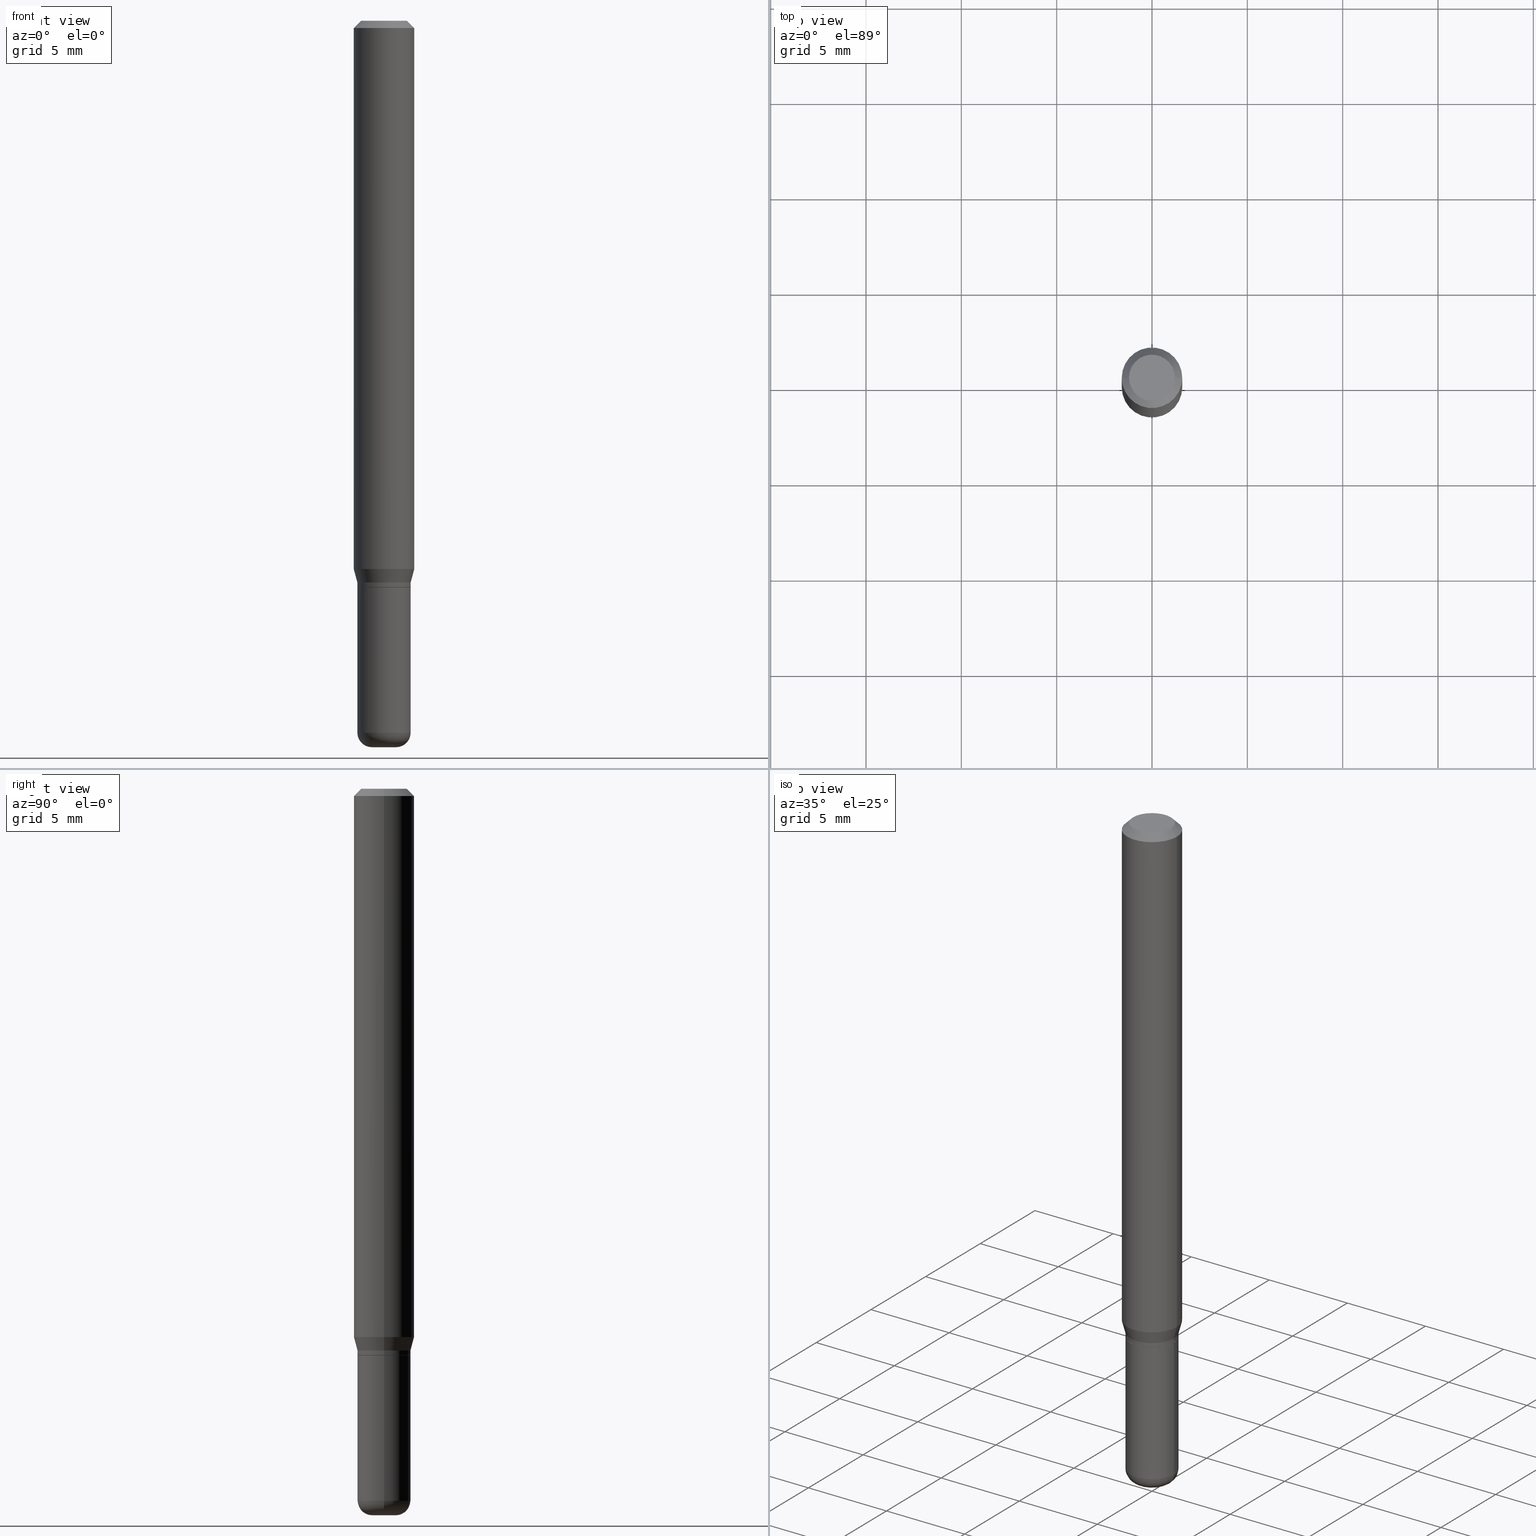
[diagram: canonical four-view strip — front | top / right | iso, engineering-drawing reading convention]
A machine part, canonical four-view strip (front | top / right | iso — engineering-drawing reading convention). The complete STEP part file that produces these views, byte-faithful:
ISO-10303-21;
HEADER;
FILE_DESCRIPTION (( 'STEP AP203' ),
    '1' );
FILE_NAME ('08620.STEP',
    '2024-02-29T20:01:35',
    ( '' ),
    ( '' ),
    'SwSTEP 2.0',
    'SolidWorks 2023',
    '' );
FILE_SCHEMA (( 'CONFIG_CONTROL_DESIGN' ));
ENDSEC;

DATA;
#1 = AXIS2_PLACEMENT_3D ( 'NONE', #308, #146, #231 ) ;
#2 = DIRECTION ( 'NONE',  ( -2.445468806185136597E-29, 3.491481338843145583E-15, 1.000000000000000000 ) ) ;
#3 = EDGE_CURVE ( 'NONE', #486, #10, #489, .T. ) ;
#4 = DIRECTION ( 'NONE',  ( 1.000000000000000000, -6.982962677686267499E-15, 4.876176775795936353E-29 ) ) ;
#5 = COORDINATED_UNIVERSAL_TIME_OFFSET ( 5, 0, .BEHIND. ) ;
#6 = DIRECTION ( 'NONE',  ( -2.445468806185136877E-29, 3.491481338843145188E-15, 1.000000000000000000 ) ) ;
#7 = ORIENTED_EDGE ( 'NONE', *, *, #461, .F. ) ;
#8 = ORIENTED_EDGE ( 'NONE', *, *, #301, .F. ) ;
#9 = EDGE_LOOP ( 'NONE', ( #462, #382 ) ) ;
#10 = VERTEX_POINT ( 'NONE', #172 ) ;
#11 = DIRECTION ( 'NONE',  ( 2.445468806185136597E-29, -3.491481338843145583E-15, -1.000000000000000000 ) ) ;
#12 = ORIENTED_EDGE ( 'NONE', *, *, #415, .F. ) ;
#13 = AXIS2_PLACEMENT_3D ( 'NONE', #410, #37, #154 ) ;
#14 = LINE ( 'NONE', #384, #236 ) ;
#15 = DIRECTION ( 'NONE',  ( -2.445468806185136597E-29, 3.491481338843145583E-15, 1.000000000000000000 ) ) ;
#16 = ADVANCED_FACE ( 'NONE', ( #56 ), #494, .T. ) ;
#17 = EDGE_LOOP ( 'NONE', ( #122, #83, #166, #206 ) ) ;
#18 = DIRECTION ( 'NONE',  ( -0.2588190451025207950, 5.211531920934546309E-15, 0.9659258262890682012 ) ) ;
#19 = DIRECTION ( 'NONE',  ( 2.445468806185136597E-29, -3.491481338843145583E-15, -1.000000000000000000 ) ) ;
#20 = DIRECTION ( 'NONE',  ( 0.7071067811865479058, -7.319954787623257623E-15, -0.7071067811865471286 ) ) ;
#21 = DIRECTION ( 'NONE',  ( -2.445468806185136597E-29, 3.491481338843145583E-15, 1.000000000000000000 ) ) ;
#22 = ADVANCED_FACE ( 'NONE', ( #464 ), #408, .T. ) ;
#23 = EDGE_LOOP ( 'NONE', ( #72, #200, #292, #42 ) ) ;
#24 = DIRECTION ( 'NONE',  ( 1.000000000000000000, -6.982962677686262766E-15, 0.000000000000000000 ) ) ;
#25 = EDGE_CURVE ( 'NONE', #120, #345, #310, .T. ) ;
#26 = DIRECTION ( 'NONE',  ( -1.000000000000000000, 7.105427357600997126E-15, 0.000000000000000000 ) ) ;
#27 = COORDINATED_UNIVERSAL_TIME_OFFSET ( 5, 0, .BEHIND. ) ;
#28 = DIRECTION ( 'NONE',  ( -0.7071067811866199593, 7.493145998870616062E-15, 0.7071067811864750752 ) ) ;
#29 = CARTESIAN_POINT ( 'NONE',  ( 2.861198503236610065E-29, -4.085033166446480067E-15, -1.170000000000000151 ) ) ;
#30 = CIRCLE ( 'NONE', #334, 0.04750000000000000749 ) ;
#31 = SECURITY_CLASSIFICATION_LEVEL ( 'unclassified' ) ;
#32 = LINE ( 'NONE', #229, #258 ) ;
#33 = EDGE_CURVE ( 'NONE', #158, #426, #332, .T. ) ;
#34 = PERSON_AND_ORGANIZATION ( #244, #245 ) ;
#35 =( GEOMETRIC_REPRESENTATION_CONTEXT ( 3 ) GLOBAL_UNCERTAINTY_ASSIGNED_CONTEXT ( ( #387 ) ) GLOBAL_UNIT_ASSIGNED_CONTEXT ( ( #180, #517, #185 ) ) REPRESENTATION_CONTEXT ( 'NONE', 'WORKASPACE' ) );
#36 = AXIS2_PLACEMENT_3D ( 'NONE', #289, #460, #88 ) ;
#37 = DIRECTION ( 'NONE',  ( -2.445468806185136597E-29, 3.491481338843145583E-15, 1.000000000000000000 ) ) ;
#38 = FACE_OUTER_BOUND ( 'NONE', #128, .T. ) ;
#39 = CARTESIAN_POINT ( 'NONE',  ( -0.06250000000000000000, -1.558292130156881494E-15, -0.01499999999999970281 ) ) ;
#40 = APPROVAL ( #70, 'UNSPECIFIED' ) ;
#41 = CARTESIAN_POINT ( 'NONE',  ( 0.06250000000000000000, -4.888073874380378612E-16, -0.01499999999999970281 ) ) ;
#42 = ORIENTED_EDGE ( 'NONE', *, *, #360, .F. ) ;
#43 = EDGE_CURVE ( 'NONE', #498, #68, #14, .T. ) ;
#44 = EDGE_LOOP ( 'NONE', ( #162, #324, #377, #49 ) ) ;
#45 = DIRECTION ( 'NONE',  ( -2.445468806185136597E-29, 3.491481338843145583E-15, 1.000000000000000000 ) ) ;
#46 = ORIENTED_EDGE ( 'NONE', *, *, #43, .T. ) ;
#47 = DIRECTION ( 'NONE',  ( 7.105427357601001859E-15, 1.000000000000000000, -3.491481338843145583E-15 ) ) ;
#48 = ORIENTED_EDGE ( 'NONE', *, *, #273, .T. ) ;
#49 = ORIENTED_EDGE ( 'NONE', *, *, #439, .T. ) ;
#50 = DIRECTION ( 'NONE',  ( 1.000000000000000000, -6.982962677686266711E-15, 4.876176775795935793E-29 ) ) ;
#51 = DIRECTION ( 'NONE',  ( 1.000000000000000000, -6.982962677686266711E-15, 0.000000000000000000 ) ) ;
#52 = CARTESIAN_POINT ( 'NONE',  ( -0.02500000000000001180, -4.900632693878031954E-15, -1.500000000000000444 ) ) ;
#53 = AXIS2_PLACEMENT_3D ( 'NONE', #59, #47, #26 ) ;
#54 = VECTOR ( 'NONE', #20, 39.37007874015748143 ) ;
#55 = CIRCLE ( 'NONE', #13, 0.05500000000000003497 ) ;
#56 = FACE_OUTER_BOUND ( 'NONE', #456, .T. ) ;
#57 = DIRECTION ( 'NONE',  ( 0.7071067811866199593, -2.468850131083015945E-15, 0.7071067811864750752 ) ) ;
#58 = ADVANCED_FACE ( 'NONE', ( #130 ), #141, .T. ) ;
#59 = CARTESIAN_POINT ( 'NONE',  ( -0.02500000000000000139, -4.954841884159399603E-15, -1.470000000000000195 ) ) ;
#60 = EDGE_CURVE ( 'NONE', #10, #345, #294, .T. ) ;
#61 = PLANE ( 'NONE',  #393 ) ;
#62 = AXIS2_PLACEMENT_3D ( 'NONE', #194, #45, #482 ) ;
#63 = EDGE_CURVE ( 'NONE', #247, #498, #510, .T. ) ;
#64 = CALENDAR_DATE ( 2024, 29, 2 ) ;
#65 = CARTESIAN_POINT ( 'NONE',  ( 0.02500000000000001180, -5.411796075206875633E-15, -1.500000000000000444 ) ) ;
#66 = CALENDAR_DATE ( 2024, 29, 2 ) ;
#67 = DIRECTION ( 'NONE',  ( -2.445468806185136877E-29, 3.491481338843145188E-15, 1.000000000000000000 ) ) ;
#68 = VERTEX_POINT ( 'NONE', #175 ) ;
#69 = DIRECTION ( 'NONE',  ( 1.000000000000000000, -6.982962677686265133E-15, 0.000000000000000000 ) ) ;
#70 = APPROVAL_STATUS ( 'not_yet_approved' ) ;
#71 = CIRCLE ( 'NONE', #134, 0.05500000000000006273 ) ;
#72 = ORIENTED_EDGE ( 'NONE', *, *, #443, .T. ) ;
#73 = CARTESIAN_POINT ( 'NONE',  ( -0.05500000000000011130, -4.217956862604895410E-15, -1.470000000000000195 ) ) ;
#74 = AXIS2_PLACEMENT_3D ( 'NONE', #338, #295, #459 ) ;
#75 = EDGE_CURVE ( 'NONE', #336, #120, #504, .T. ) ;
#76 = PLANE ( 'NONE',  #107 ) ;
#77 = PERSON_AND_ORGANIZATION_ROLE ( 'classification_officer' ) ;
#78 = LINE ( 'NONE', #328, #167 ) ;
#79 = ADVANCED_FACE ( 'NONE', ( #296 ), #433, .F. ) ;
#80 = CONICAL_SURFACE ( 'NONE', #224, 0.05450000000000006228, 0.7853981633975507526 ) ;
#81 = ORIENTED_EDGE ( 'NONE', *, *, #63, .F. ) ;
#82 = AXIS2_PLACEMENT_3D ( 'NONE', #284, #15, #385 ) ;
#83 = ORIENTED_EDGE ( 'NONE', *, *, #281, .T. ) ;
#84 = ORIENTED_EDGE ( 'NONE', *, *, #113, .F. ) ;
#85 = FACE_OUTER_BOUND ( 'NONE', #9, .T. ) ;
#86 = ORIENTED_EDGE ( 'NONE', *, *, #75, .T. ) ;
#87 = CYLINDRICAL_SURFACE ( 'NONE', #275, 0.05500000000000006273 ) ;
#88 = DIRECTION ( 'NONE',  ( 1.000000000000000000, -6.982962677686270655E-15, 0.000000000000000000 ) ) ;
#89 = ORIENTED_EDGE ( 'NONE', *, *, #281, .F. ) ;
#90 = ORIENTED_EDGE ( 'NONE', *, *, #63, .T. ) ;
#91 = VERTEX_POINT ( 'NONE', #222 ) ;
#92 = DIRECTION ( 'NONE',  ( -2.445468806185136597E-29, 3.491481338843145583E-15, 1.000000000000000000 ) ) ;
#93 = DIRECTION ( 'NONE',  ( -2.445468806185136597E-29, 3.491481338843145583E-15, 1.000000000000000000 ) ) ;
#94 = DESIGN_CONTEXT ( 'detailed design', #417, 'design' ) ;
#95 = SECURITY_CLASSIFICATION ( '', '', #31 ) ;
#96 = EDGE_CURVE ( 'NONE', #68, #426, #188, .T. ) ;
#97 = CIRCLE ( 'NONE', #483, 0.06250000000000000000 ) ;
#98 = DIRECTION ( 'NONE',  ( -2.445468806185136597E-29, 3.491481338843145583E-15, 1.000000000000000000 ) ) ;
#99 = CARTESIAN_POINT ( 'NONE',  ( 2.861198503236610065E-29, -4.085033166446480067E-15, -1.170000000000000151 ) ) ;
#100 = ORIENTED_EDGE ( 'NONE', *, *, #33, .F. ) ;
#101 = MANIFOLD_SOLID_BREP ( 'Body-Move/Copy2[2]', #317 ) ;
#102 = DIRECTION ( 'NONE',  ( 1.000000000000000000, -6.982962677686274599E-15, 0.000000000000000000 ) ) ;
#103 = DIRECTION ( 'NONE',  ( 1.000000000000000000, -6.982962677686262766E-15, 0.000000000000000000 ) ) ;
#104 = APPROVAL ( #137, 'UNSPECIFIED' ) ;
#105 = APPROVAL_PERSON_ORGANIZATION ( #478, #40, #266 ) ;
#106 = AXIS2_PLACEMENT_3D ( 'NONE', #163, #92, #219 ) ;
#107 = AXIS2_PLACEMENT_3D ( 'NONE', #238, #235, #320 ) ;
#108 = DIRECTION ( 'NONE',  ( -2.438088387897960049E-29, 3.491481338843145188E-15, 1.000000000000000000 ) ) ;
#109 = EDGE_CURVE ( 'NONE', #336, #174, #205, .T. ) ;
#110 = CARTESIAN_POINT ( 'NONE',  ( 0.05500000000000011130, -5.516540515372169792E-15, -1.470000000000000195 ) ) ;
#111 = DIRECTION ( 'NONE',  ( -2.445468806185136597E-29, 3.491481338843145583E-15, 1.000000000000000000 ) ) ;
#112 = ADVANCED_FACE ( 'NONE', ( #259 ), #226, .T. ) ;
#113 = EDGE_CURVE ( 'NONE', #218, #412, #355, .T. ) ;
#114 = APPROVAL_DATE_TIME ( #348, #40 ) ;
#115 = SHAPE_DEFINITION_REPRESENTATION ( #291, #316 ) ;
#116 = LINE ( 'NONE', #274, #361 ) ;
#117 = EDGE_CURVE ( 'NONE', #174, #345, #411, .T. ) ;
#118 = CIRCLE ( 'NONE', #36, 0.06250000000000000000 ) ;
#119 = CLOSED_SHELL ( 'NONE', ( #112, #405, #79, #491, #240, #169 ) ) ;
#120 = VERTEX_POINT ( 'NONE', #41 ) ;
#121 = CYLINDRICAL_SURFACE ( 'NONE', #217, 0.05500000000000004191 ) ;
#122 = ORIENTED_EDGE ( 'NONE', *, *, #150, .T. ) ;
#123 = DIRECTION ( 'NONE',  ( -2.445468806185136597E-29, 3.491481338843145583E-15, 1.000000000000000000 ) ) ;
#124 = CIRCLE ( 'NONE', #511, 0.05500000000000000028 ) ;
#125 = ORIENTED_EDGE ( 'NONE', *, *, #389, .T. ) ;
#126 = DIRECTION ( 'NONE',  ( 1.000000000000000000, -6.982962677686251722E-15, 0.000000000000000000 ) ) ;
#127 = DIRECTION ( 'NONE',  ( 1.000000000000000000, -6.982962677686261977E-15, 0.000000000000000000 ) ) ;
#128 = EDGE_LOOP ( 'NONE', ( #89, #211, #326, #306 ) ) ;
#129 = EDGE_LOOP ( 'NONE', ( #371, #187, #370, #7 ) ) ;
#130 = FACE_OUTER_BOUND ( 'NONE', #249, .T. ) ;
#131 = DIRECTION ( 'NONE',  ( -2.445468806185136597E-29, 3.491481338843145583E-15, 1.000000000000000000 ) ) ;
#132 = CARTESIAN_POINT ( 'NONE',  ( 0.06250000000000000000, -4.811533449433669144E-16, -0.01499999999999970281 ) ) ;
#133 = DIRECTION ( 'NONE',  ( 2.438088387897960049E-29, -3.491481338843145188E-15, -1.000000000000000000 ) ) ;
#134 = AXIS2_PLACEMENT_3D ( 'NONE', #349, #448, #445 ) ;
#135 = DIRECTION ( 'NONE',  ( -1.000000000000000000, 6.982962677686266711E-15, 0.000000000000000000 ) ) ;
#136 = ADVANCED_FACE ( 'NONE', ( #38 ), #121, .T. ) ;
#137 = APPROVAL_STATUS ( 'not_yet_approved' ) ;
#138 = DIRECTION ( 'NONE',  ( 1.000000000000000000, 0.000000000000000000, 0.000000000000000000 ) ) ;
#139 = EDGE_CURVE ( 'NONE', #335, #247, #277, .T. ) ;
#140 = APPROVAL_PERSON_ORGANIZATION ( #34, #152, #449 ) ;
#141 = CONICAL_SURFACE ( 'NONE', #446, 0.05500000000000003497, 0.2617993877991495189 ) ;
#142 = AXIS2_PLACEMENT_3D ( 'NONE', #164, #123, #455 ) ;
#143 = PERSON_AND_ORGANIZATION_ROLE ( 'design_owner' ) ;
#144 = DIRECTION ( 'NONE',  ( -2.445468806185136597E-29, 3.491481338843145583E-15, 1.000000000000000000 ) ) ;
#145 = DIRECTION ( 'NONE',  ( 1.000000000000000000, -6.982962677686265922E-15, 4.876176775795935793E-29 ) ) ;
#146 = DIRECTION ( 'NONE',  ( -2.445468806185136597E-29, 3.491481338843145583E-15, 1.000000000000000000 ) ) ;
#147 = CC_DESIGN_SECURITY_CLASSIFICATION ( #95, ( #309 ) ) ;
#148 = VECTOR ( 'NONE', #18, 39.37007874015748854 ) ;
#149 = CIRCLE ( 'NONE', #453, 0.06250000000000000000 ) ;
#150 = EDGE_CURVE ( 'NONE', #357, #438, #71, .T. ) ;
#151 = DIRECTION ( 'NONE',  ( 1.000000000000000000, -6.982962677686266711E-15, 4.852736867747365086E-29 ) ) ;
#152 = APPROVAL ( #363, 'UNSPECIFIED' ) ;
#153 = CARTESIAN_POINT ( 'NONE',  ( 3.594839145092150820E-29, -5.132477568099424807E-15, -1.470000000000000195 ) ) ;
#154 = DIRECTION ( 'NONE',  ( 1.000000000000000000, -6.982962677686258033E-15, 0.000000000000000000 ) ) ;
#155 = DIRECTION ( 'NONE',  ( -2.445468806185136597E-29, 3.491481338843145583E-15, 1.000000000000000000 ) ) ;
#156 = CC_DESIGN_APPROVAL ( #104, ( #309 ) ) ;
#157 = CARTESIAN_POINT ( 'NONE',  ( 0.02500000000000000139, -5.307051635041580686E-15, -1.470000000000000195 ) ) ;
#158 = VERTEX_POINT ( 'NONE', #73 ) ;
#159 = AXIS2_PLACEMENT_3D ( 'NONE', #513, #144, #69 ) ;
#160 = DIRECTION ( 'NONE',  ( -0.7071067811865479058, 2.468850131082261005E-15, -0.7071067811865471286 ) ) ;
#161 = ORIENTED_EDGE ( 'NONE', *, *, #3, .F. ) ;
#162 = ORIENTED_EDGE ( 'NONE', *, *, #75, .F. ) ;
#163 = CARTESIAN_POINT ( 'NONE',  ( 3.668203209277632395E-31, -5.237222008264614861E-17, -0.01499999999999970281 ) ) ;
#164 = CARTESIAN_POINT ( 'NONE',  ( 0.000000000000000000, 0.000000000000000000, 0.000000000000000000 ) ) ;
#165 = AXIS2_PLACEMENT_3D ( 'NONE', #499, #421, #213 ) ;
#166 = ORIENTED_EDGE ( 'NONE', *, *, #480, .F. ) ;
#167 = VECTOR ( 'NONE', #423, 39.37007874015748143 ) ;
#168 = EDGE_LOOP ( 'NONE', ( #161, #212, #286, #424 ) ) ;
#169 = ADVANCED_FACE ( 'NONE', ( #364 ), #76, .F. ) ;
#170 = CARTESIAN_POINT ( 'NONE',  ( 2.836743815174759641E-29, -4.050118353058050785E-15, -1.160000000000000364 ) ) ;
#171 = CYLINDRICAL_SURFACE ( 'NONE', #74, 0.06250000000000000000 ) ;
#172 = CARTESIAN_POINT ( 'NONE',  ( -0.06250000000000000000, -3.508301250081179708E-15, -1.132009618943234042 ) ) ;
#173 = FACE_OUTER_BOUND ( 'NONE', #457, .T. ) ;
#174 = VERTEX_POINT ( 'NONE', #197 ) ;
#175 = CARTESIAN_POINT ( 'NONE',  ( 0.05500000000000000028, -4.469096113719225052E-15, -1.170000000000000151 ) ) ;
#176 = CARTESIAN_POINT ( 'NONE',  ( 2.859975768833517824E-29, -4.083287425777059353E-15, -1.169500000000000206 ) ) ;
#177 = EDGE_LOOP ( 'NONE', ( #203, #451, #431, #329 ) ) ;
#178 = CIRCLE ( 'NONE', #159, 0.05500000000000011130 ) ;
#179 = CARTESIAN_POINT ( 'NONE',  ( -6.680649051745406845E-45, 9.538196290434862081E-31, 2.731847993664263218E-16 ) ) ;
#180 =( CONVERSION_BASED_UNIT ( 'INCH', #395 ) LENGTH_UNIT ( ) NAMED_UNIT ( #267 ) );
#181 = ORIENTED_EDGE ( 'NONE', *, *, #390, .T. ) ;
#182 = DIRECTION ( 'NONE',  ( 1.000000000000000000, -6.982962677686251722E-15, 0.000000000000000000 ) ) ;
#183 = PERSON_AND_ORGANIZATION ( #244, #245 ) ;
#184 = ORIENTED_EDGE ( 'NONE', *, *, #443, .F. ) ;
#185 =( NAMED_UNIT ( * ) SI_UNIT ( $, .STERADIAN. ) SOLID_ANGLE_UNIT ( ) );
#186 = CARTESIAN_POINT ( 'NONE',  ( 2.768294211427201767E-29, -3.952390459931241535E-15, -1.132009618943234042 ) ) ;
#187 = ORIENTED_EDGE ( 'NONE', *, *, #113, .T. ) ;
#188 = CIRCLE ( 'NONE', #413, 0.05500000000000000028 ) ;
#189 = EDGE_CURVE ( 'NONE', #486, #91, #55, .T. ) ;
#190 = LINE ( 'NONE', #313, #409 ) ;
#191 = PERSON_AND_ORGANIZATION ( #244, #245 ) ;
#192 = LOCAL_TIME ( 15, 1, 35.00000000000000000, #507 ) ;
#193 = DATE_AND_TIME ( #241, #467 ) ;
#194 = CARTESIAN_POINT ( 'NONE',  ( 2.861198503236610065E-29, -4.085033166446480067E-15, -1.170000000000000151 ) ) ;
#195 = EDGE_CURVE ( 'NONE', #174, #336, #30, .T. ) ;
#196 = DIRECTION ( 'NONE',  ( -2.445468806185136597E-29, 3.491481338843145583E-15, 1.000000000000000000 ) ) ;
#197 = CARTESIAN_POINT ( 'NONE',  ( -0.04750000000000000749, 3.578768372314221353E-16, 2.731847993664239060E-16 ) ) ;
#198 = CARTESIAN_POINT ( 'NONE',  ( 3.668203209277706016E-29, -5.237222008264719754E-15, -1.500000000000000444 ) ) ;
#199 = CARTESIAN_POINT ( 'NONE',  ( -0.06250000000000000000, 4.440892098500626162E-16, -3.074334431409316114E-30 ) ) ;
#200 = ORIENTED_EDGE ( 'NONE', *, *, #248, .T. ) ;
#201 = APPROVAL_DATE_TIME ( #481, #152 ) ;
#202 = AXIS2_PLACEMENT_3D ( 'NONE', #505, #488, #372 ) ;
#203 = ORIENTED_EDGE ( 'NONE', *, *, #60, .F. ) ;
#204 = EDGE_CURVE ( 'NONE', #414, #120, #116, .T. ) ;
#205 = CIRCLE ( 'NONE', #323, 0.04750000000000000749 ) ;
#206 = ORIENTED_EDGE ( 'NONE', *, *, #305, .F. ) ;
#207 = CARTESIAN_POINT ( 'NONE',  ( 0.000000000000000000, 0.000000000000000000, 0.000000000000000000 ) ) ;
#208 = ORIENTED_EDGE ( 'NONE', *, *, #60, .T. ) ;
#209 = DIRECTION ( 'NONE',  ( 1.000000000000000000, -6.982962677686261977E-15, 0.000000000000000000 ) ) ;
#210 = ORIENTED_EDGE ( 'NONE', *, *, #389, .F. ) ;
#211 = ORIENTED_EDGE ( 'NONE', *, *, #461, .T. ) ;
#212 = ORIENTED_EDGE ( 'NONE', *, *, #189, .T. ) ;
#213 = DIRECTION ( 'NONE',  ( 1.000000000000000000, -6.982962677686258033E-15, 0.000000000000000000 ) ) ;
#214 = FACE_OUTER_BOUND ( 'NONE', #512, .T. ) ;
#215 = LOCAL_TIME ( 15, 1, 35.00000000000000000, #271 ) ;
#216 = VECTOR ( 'NONE', #6, 39.37007874015748143 ) ;
#217 = AXIS2_PLACEMENT_3D ( 'NONE', #207, #196, #4 ) ;
#218 = VERTEX_POINT ( 'NONE', #228 ) ;
#219 = DIRECTION ( 'NONE',  ( 1.000000000000000000, -6.982962677686266711E-15, 0.000000000000000000 ) ) ;
#220 = DIRECTION ( 'NONE',  ( -2.445468806185136597E-29, 3.491481338843145583E-15, 1.000000000000000000 ) ) ;
#221 = FACE_OUTER_BOUND ( 'NONE', #177, .T. ) ;
#222 = CARTESIAN_POINT ( 'NONE',  ( 0.05500000000000003497, -4.434181300330794981E-15, -1.160000000000000364 ) ) ;
#223 = CARTESIAN_POINT ( 'NONE',  ( 3.668203209277632395E-31, -5.237222008264614861E-17, -0.01499999999999970281 ) ) ;
#224 = AXIS2_PLACEMENT_3D ( 'NONE', #29, #233, #307 ) ;
#225 = AXIS2_PLACEMENT_3D ( 'NONE', #255, #427, #50 ) ;
#226 = TOROIDAL_SURFACE ( 'NONE', #237, 0.02500000000000000139, 0.03000000000000011685 ) ;
#227 = PERSON_AND_ORGANIZATION ( #244, #245 ) ;
#228 = CARTESIAN_POINT ( 'NONE',  ( -0.05450000000000006228, -3.695138148283114316E-15, -1.170000000000000151 ) ) ;
#229 = CARTESIAN_POINT ( 'NONE',  ( -0.05450000000000006228, -3.697787375457225517E-15, -1.170000000000000151 ) ) ;
#230 = APPROVAL_ROLE ( '' ) ;
#231 = DIRECTION ( 'NONE',  ( 1.000000000000000000, -6.982962677686265133E-15, 4.883557194083112340E-29 ) ) ;
#232 = AXIS2_PLACEMENT_3D ( 'NONE', #450, #11, #471 ) ;
#233 = DIRECTION ( 'NONE',  ( -2.445468806185136597E-29, 3.491481338843145583E-15, 1.000000000000000000 ) ) ;
#234 = CC_DESIGN_APPROVAL ( #40, ( #493 ) ) ;
#235 = DIRECTION ( 'NONE',  ( -2.438088387897960049E-29, 3.491481338843145188E-15, 1.000000000000000000 ) ) ;
#236 = VECTOR ( 'NONE', #287, 39.37007874015748143 ) ;
#237 = AXIS2_PLACEMENT_3D ( 'NONE', #153, #368, #416 ) ;
#238 = CARTESIAN_POINT ( 'NONE',  ( 3.582686580359767159E-29, -5.359686688179454114E-15, -1.500000000000000444 ) ) ;
#239 = COORDINATED_UNIVERSAL_TIME_OFFSET ( 5, 0, .BEHIND. ) ;
#240 = ADVANCED_FACE ( 'NONE', ( #352 ), #447, .T. ) ;
#241 = CALENDAR_DATE ( 2024, 29, 2 ) ;
#242 = ADVANCED_FACE ( 'NONE', ( #473 ), #399, .F. ) ;
#243 = EDGE_LOOP ( 'NONE', ( #254, #86, #466, #293 ) ) ;
#244 = PERSON ( 'UNSPECIFIED', 'UNSPECIFIED', 'UNSPECIFIED', ('UNSPECIFIED'), ('UNSPECIFIED'), ('UNSPECIFIED') ) ;
#245 = ORGANIZATION ( 'UNSPECIFIED', 'UNSPECIFIED', '' ) ;
#246 = AXIS2_PLACEMENT_3D ( 'NONE', #515, #108, #437 ) ;
#247 = VERTEX_POINT ( 'NONE', #65 ) ;
#248 = EDGE_CURVE ( 'NONE', #218, #438, #32, .T. ) ;
#249 = EDGE_LOOP ( 'NONE', ( #463, #280, #8, #300 ) ) ;
#250 = CYLINDRICAL_SURFACE ( 'NONE', #142, 0.05500000000000004191 ) ;
#251 = ORIENTED_EDGE ( 'NONE', *, *, #383, .T. ) ;
#252 = CARTESIAN_POINT ( 'NONE',  ( -0.05500000000000006273, 3.907985046680555479E-16, -2.705414299640201165E-30 ) ) ;
#253 = CARTESIAN_POINT ( 'NONE',  ( 3.316907271900976589E-16, 0.04750000000000000749, -2.925296391183627249E-17 ) ) ;
#254 = ORIENTED_EDGE ( 'NONE', *, *, #109, .F. ) ;
#255 = CARTESIAN_POINT ( 'NONE',  ( 0.000000000000000000, 0.000000000000000000, 0.000000000000000000 ) ) ;
#256 = CARTESIAN_POINT ( 'NONE',  ( -0.05500000000000003497, -3.583810549235586733E-15, -1.160000000000000364 ) ) ;
#257 = DIRECTION ( 'NONE',  ( -2.445468806185136597E-29, 3.491481338843145583E-15, 1.000000000000000000 ) ) ;
#258 = VECTOR ( 'NONE', #28, 39.37007874015748143 ) ;
#259 = FACE_OUTER_BOUND ( 'NONE', #501, .T. ) ;
#260 = CARTESIAN_POINT ( 'NONE',  ( 0.000000000000000000, 0.000000000000000000, 0.000000000000000000 ) ) ;
#261 = EDGE_CURVE ( 'NONE', #10, #414, #97, .T. ) ;
#262 = CARTESIAN_POINT ( 'NONE',  ( 3.668203209277706016E-29, -5.237222008264719754E-15, -1.500000000000000444 ) ) ;
#263 = APPROVAL_PERSON_ORGANIZATION ( #227, #104, #230 ) ;
#264 = ORIENTED_EDGE ( 'NONE', *, *, #415, .T. ) ;
#265 = CIRCLE ( 'NONE', #380, 0.05500000000000006273 ) ;
#266 = APPROVAL_ROLE ( '' ) ;
#267 = DIMENSIONAL_EXPONENTS ( 1.000000000000000000, 0.000000000000000000, 0.000000000000000000, 0.000000000000000000, 0.000000000000000000, 0.000000000000000000, 0.000000000000000000 ) ;
#268 = PERSON_AND_ORGANIZATION ( #244, #245 ) ;
#269 = EDGE_LOOP ( 'NONE', ( #340, #374 ) ) ;
#270 = MANIFOLD_SOLID_BREP ( 'Body-Move/Copy2[1]', #119 ) ;
#271 = COORDINATED_UNIVERSAL_TIME_OFFSET ( 5, 0, .BEHIND. ) ;
#272 = DATE_AND_TIME ( #66, #192 ) ;
#273 = EDGE_CURVE ( 'NONE', #498, #158, #178, .T. ) ;
#274 = CARTESIAN_POINT ( 'NONE',  ( 0.06250000000000000000, -4.364351673553916694E-16, 3.047610484872459871E-30 ) ) ;
#275 = AXIS2_PLACEMENT_3D ( 'NONE', #260, #288, #434 ) ;
#276 = AXIS2_PLACEMENT_3D ( 'NONE', #157, #502, #102 ) ;
#277 = CIRCLE ( 'NONE', #298, 0.02500000000000001180 ) ;
#278 = CC_DESIGN_PERSON_AND_ORGANIZATION_ASSIGNMENT ( #477, #402, ( #309 ) ) ;
#279 = ORIENTED_EDGE ( 'NONE', *, *, #96, .F. ) ;
#280 = ORIENTED_EDGE ( 'NONE', *, *, #3, .T. ) ;
#281 = EDGE_CURVE ( 'NONE', #438, #486, #190, .T. ) ;
#282 = AXIS2_PLACEMENT_3D ( 'NONE', #398, #315, #138 ) ;
#283 = ORIENTED_EDGE ( 'NONE', *, *, #96, .T. ) ;
#284 = CARTESIAN_POINT ( 'NONE',  ( 3.594839145092150820E-29, -5.132477568099424807E-15, -1.470000000000000195 ) ) ;
#285 = CIRCLE ( 'NONE', #436, 0.05450000000000006228 ) ;
#286 = ORIENTED_EDGE ( 'NONE', *, *, #444, .T. ) ;
#287 = DIRECTION ( 'NONE',  ( -2.445468806185136877E-29, 3.491481338843145188E-15, 1.000000000000000000 ) ) ;
#288 = DIRECTION ( 'NONE',  ( -2.445468806185136597E-29, 3.491481338843145583E-15, 1.000000000000000000 ) ) ;
#289 = CARTESIAN_POINT ( 'NONE',  ( 2.768294211427201767E-29, -3.952390459931241535E-15, -1.132009618943234042 ) ) ;
#290 = ADVANCED_FACE ( 'NONE', ( #373 ), #470, .T. ) ;
#291 = PRODUCT_DEFINITION_SHAPE ( 'NONE', 'NONE',  #493 ) ;
#292 = ORIENTED_EDGE ( 'NONE', *, *, #150, .F. ) ;
#293 = ORIENTED_EDGE ( 'NONE', *, *, #117, .F. ) ;
#294 = LINE ( 'NONE', #199, #216 ) ;
#295 = DIRECTION ( 'NONE',  ( -2.445468806185136597E-29, 3.491481338843145583E-15, 1.000000000000000000 ) ) ;
#296 = FACE_OUTER_BOUND ( 'NONE', #418, .T. ) ;
#297 = CARTESIAN_POINT ( 'NONE',  ( -0.05500000000000006273, -3.692488921109003903E-15, -1.169500000000000206 ) ) ;
#298 = AXIS2_PLACEMENT_3D ( 'NONE', #198, #155, #182 ) ;
#299 = CC_DESIGN_DATE_AND_TIME_ASSIGNMENT ( #193, #321, ( #95 ) ) ;
#300 = ORIENTED_EDGE ( 'NONE', *, *, #444, .F. ) ;
#301 = EDGE_CURVE ( 'NONE', #414, #10, #118, .T. ) ;
#302 = DIRECTION ( 'NONE',  ( 2.438088387897960049E-29, -3.491481338843145188E-15, -1.000000000000000000 ) ) ;
#303 = CARTESIAN_POINT ( 'NONE',  ( -0.05500000000000000028, -4.217956862604896988E-15, -1.170000000000000151 ) ) ;
#304 = APPROVAL_DATE_TIME ( #314, #104 ) ;
#305 = EDGE_CURVE ( 'NONE', #357, #91, #78, .T. ) ;
#306 = ORIENTED_EDGE ( 'NONE', *, *, #189, .F. ) ;
#307 = DIRECTION ( 'NONE',  ( 1.000000000000000000, -6.982962677686261977E-15, 0.000000000000000000 ) ) ;
#308 = CARTESIAN_POINT ( 'NONE',  ( 3.594839145092150820E-29, -5.132477568099424807E-15, -1.470000000000000195 ) ) ;
#309 = PRODUCT_DEFINITION_FORMATION_WITH_SPECIFIED_SOURCE ( 'ANY', '', #339, .NOT_KNOWN. ) ;
#310 = CIRCLE ( 'NONE', #106, 0.06250000000000000000 ) ;
#311 = AXIS2_PLACEMENT_3D ( 'NONE', #495, #19, #135 ) ;
#312 = APPLICATION_PROTOCOL_DEFINITION ( 'international standard', 'config_control_design', 1994, #417 ) ;
#313 = CARTESIAN_POINT ( 'NONE',  ( -0.05500000000000004191, 3.907985046680554000E-16, -2.705414299640200464E-30 ) ) ;
#314 = DATE_AND_TIME ( #514, #376 ) ;
#315 = DIRECTION ( 'NONE',  ( 0.000000000000000000, 0.000000000000000000, 1.000000000000000000 ) ) ;
#316 = ADVANCED_BREP_SHAPE_REPRESENTATION ( '08620', ( #270, #101, #282 ), #35 ) ;
#317 = CLOSED_SHELL ( 'NONE', ( #397, #290, #359, #16, #58, #22, #396, #346, #432, #242, #509, #136 ) ) ;
#318 = VECTOR ( 'NONE', #57, 39.37007874015748143 ) ;
#319 = CALENDAR_DATE ( 2024, 29, 2 ) ;
#320 = DIRECTION ( 'NONE',  ( 1.000000000000000000, -6.982962677686265922E-15, 4.876176775795935793E-29 ) ) ;
#321 = DATE_TIME_ROLE ( 'classification_date' ) ;
#322 = AXIS2_PLACEMENT_3D ( 'NONE', #472, #356, #145 ) ;
#323 = AXIS2_PLACEMENT_3D ( 'NONE', #179, #98, #425 ) ;
#324 = ORIENTED_EDGE ( 'NONE', *, *, #195, .F. ) ;
#325 = PRODUCT_RELATED_PRODUCT_CATEGORY ( 'detail', '', ( #339 ) ) ;
#326 = ORIENTED_EDGE ( 'NONE', *, *, #305, .T. ) ;
#327 = CARTESIAN_POINT ( 'NONE',  ( 0.05500000000000003497, -4.434181300330794981E-15, -1.160000000000000364 ) ) ;
#328 = CARTESIAN_POINT ( 'NONE',  ( 0.05500000000000004191, -3.840629472727449846E-16, 2.681897226687766928E-30 ) ) ;
#329 = ORIENTED_EDGE ( 'NONE', *, *, #439, .F. ) ;
#330 = EDGE_LOOP ( 'NONE', ( #12, #454, #90, #367 ) ) ;
#331 = CIRCLE ( 'NONE', #202, 0.05500000000000003497 ) ;
#332 = LINE ( 'NONE', #252, #474 ) ;
#333 = DIRECTION ( 'NONE',  ( -2.445468806185136597E-29, 3.491481338843145583E-15, 1.000000000000000000 ) ) ;
#334 = AXIS2_PLACEMENT_3D ( 'NONE', #362, #2, #151 ) ;
#335 = VERTEX_POINT ( 'NONE', #52 ) ;
#336 = VERTEX_POINT ( 'NONE', #381 ) ;
#337 = DIRECTION ( 'NONE',  ( 1.000000000000000000, -6.982962677686258033E-15, 0.000000000000000000 ) ) ;
#338 = CARTESIAN_POINT ( 'NONE',  ( 0.000000000000000000, 0.000000000000000000, 0.000000000000000000 ) ) ;
#339 = PRODUCT ( '08620', '08620', '', ( #508 ) ) ;
#340 = ORIENTED_EDGE ( 'NONE', *, *, #390, .F. ) ;
#341 = CARTESIAN_POINT ( 'NONE',  ( 0.05450000000000006228, -4.465604632380382045E-15, -1.170000000000000151 ) ) ;
#342 = CARTESIAN_POINT ( 'NONE',  ( 3.840629472727732850E-16, 0.05499999999999591327, -1.170000000000000151 ) ) ;
#343 = DIRECTION ( 'NONE',  ( 1.000000000000000000, -6.982962677686262766E-15, 0.000000000000000000 ) ) ;
#344 = CONICAL_SURFACE ( 'NONE', #232, 0.06250000000000000000, 0.7853981633974488341 ) ;
#345 = VERTEX_POINT ( 'NONE', #39 ) ;
#346 = ADVANCED_FACE ( 'NONE', ( #365 ), #344, .T. ) ;
#347 = DIRECTION ( 'NONE',  ( -1.000000000000000000, 6.982962677686265922E-15, -4.876176775795935793E-29 ) ) ;
#348 = DATE_AND_TIME ( #64, #215 ) ;
#349 = CARTESIAN_POINT ( 'NONE',  ( 2.859975768833517824E-29, -4.083287425777059353E-15, -1.169500000000000206 ) ) ;
#350 = PERSON_AND_ORGANIZATION_ROLE ( 'creator' ) ;
#351 = PERSON_AND_ORGANIZATION ( #244, #245 ) ;
#352 = FACE_OUTER_BOUND ( 'NONE', #330, .T. ) ;
#353 = VECTOR ( 'NONE', #160, 39.37007874015748143 ) ;
#354 = AXIS2_PLACEMENT_3D ( 'NONE', #342, #302, #347 ) ;
#355 = CIRCLE ( 'NONE', #62, 0.05450000000000006228 ) ;
#356 = DIRECTION ( 'NONE',  ( -2.445468806185136597E-29, 3.491481338843145583E-15, 1.000000000000000000 ) ) ;
#357 = VERTEX_POINT ( 'NONE', #392 ) ;
#358 = FACE_OUTER_BOUND ( 'NONE', #129, .T. ) ;
#359 = ADVANCED_FACE ( 'NONE', ( #419 ), #429, .T. ) ;
#360 = EDGE_CURVE ( 'NONE', #412, #357, #430, .T. ) ;
#361 = VECTOR ( 'NONE', #67, 39.37007874015748143 ) ;
#362 = CARTESIAN_POINT ( 'NONE',  ( -6.680649051745406845E-45, 9.538196290434862081E-31, 2.731847993664263218E-16 ) ) ;
#363 = APPROVAL_STATUS ( 'not_yet_approved' ) ;
#364 = FACE_OUTER_BOUND ( 'NONE', #269, .T. ) ;
#365 = FACE_OUTER_BOUND ( 'NONE', #44, .T. ) ;
#366 = CIRCLE ( 'NONE', #441, 0.02500000000000001180 ) ;
#367 = ORIENTED_EDGE ( 'NONE', *, *, #383, .F. ) ;
#368 = DIRECTION ( 'NONE',  ( -2.445468806185136597E-29, 3.491481338843145583E-15, 1.000000000000000000 ) ) ;
#369 = ORIENTED_EDGE ( 'NONE', *, *, #273, .F. ) ;
#370 = ORIENTED_EDGE ( 'NONE', *, *, #360, .T. ) ;
#371 = ORIENTED_EDGE ( 'NONE', *, *, #248, .F. ) ;
#372 = DIRECTION ( 'NONE',  ( 1.000000000000000000, -6.982962677686258033E-15, 0.000000000000000000 ) ) ;
#373 = FACE_OUTER_BOUND ( 'NONE', #23, .T. ) ;
#374 = ORIENTED_EDGE ( 'NONE', *, *, #139, .F. ) ;
#375 = ORIENTED_EDGE ( 'NONE', *, *, #25, .F. ) ;
#376 = LOCAL_TIME ( 15, 1, 35.00000000000000000, #27 ) ;
#377 = ORIENTED_EDGE ( 'NONE', *, *, #117, .T. ) ;
#378 = DIRECTION ( 'NONE',  ( -2.445468806185136877E-29, 3.491481338843145188E-15, 1.000000000000000000 ) ) ;
#379 = LINE ( 'NONE', #327, #492 ) ;
#380 = AXIS2_PLACEMENT_3D ( 'NONE', #176, #93, #343 ) ;
#381 = CARTESIAN_POINT ( 'NONE',  ( 0.04750000000000000749, -4.035134999187568762E-16, 2.731847993664288856E-16 ) ) ;
#382 = ORIENTED_EDGE ( 'NONE', *, *, #109, .T. ) ;
#383 = EDGE_CURVE ( 'NONE', #158, #498, #479, .T. ) ;
#384 = CARTESIAN_POINT ( 'NONE',  ( 0.05500000000000006273, -3.840629472727450832E-16, 2.681897226687767629E-30 ) ) ;
#385 = DIRECTION ( 'NONE',  ( 1.000000000000000000, -6.982962677686265133E-15, 0.000000000000000000 ) ) ;
#386 = FACE_OUTER_BOUND ( 'NONE', #17, .T. ) ;
#387 = UNCERTAINTY_MEASURE_WITH_UNIT (LENGTH_MEASURE( 1.000000000000000082E-05 ), #180, 'distance_accuracy_value', 'NONE');
#388 = ORIENTED_EDGE ( 'NONE', *, *, #204, .F. ) ;
#389 = EDGE_CURVE ( 'NONE', #426, #68, #124, .T. ) ;
#390 = EDGE_CURVE ( 'NONE', #247, #335, #366, .T. ) ;
#391 = CARTESIAN_POINT ( 'NONE',  ( 2.861198503236610065E-29, -4.085033166446480067E-15, -1.170000000000000151 ) ) ;
#392 = CARTESIAN_POINT ( 'NONE',  ( 0.05500000000000006273, -4.467350373049804337E-15, -1.169500000000000206 ) ) ;
#393 = AXIS2_PLACEMENT_3D ( 'NONE', #253, #133, #422 ) ;
#394 = APPLICATION_CONTEXT ( 'configuration controlled 3d designs of mechanical parts and assemblies' ) ;
#395 = LENGTH_MEASURE_WITH_UNIT ( LENGTH_MEASURE( 0.02539999999999999897 ), #404 );
#396 = ADVANCED_FACE ( 'NONE', ( #221 ), #171, .T. ) ;
#397 = ADVANCED_FACE ( 'NONE', ( #386 ), #250, .T. ) ;
#398 = CARTESIAN_POINT ( 'NONE',  ( 0.000000000000000000, 0.000000000000000000, 0.000000000000000000 ) ) ;
#399 = PLANE ( 'NONE',  #246 ) ;
#400 = AXIS2_PLACEMENT_3D ( 'NONE', #496, #257, #127 ) ;
#401 = DIRECTION ( 'NONE',  ( 1.000000000000000000, -6.982962677686270655E-15, 0.000000000000000000 ) ) ;
#402 = PERSON_AND_ORGANIZATION_ROLE ( 'creator' ) ;
#403 = CC_DESIGN_PERSON_AND_ORGANIZATION_ASSIGNMENT ( #183, #440, ( #309 ) ) ;
#404 =( LENGTH_UNIT ( ) NAMED_UNIT ( * ) SI_UNIT ( $, .METRE. ) );
#405 = ADVANCED_FACE ( 'NONE', ( #173 ), #87, .T. ) ;
#406 = LOCAL_TIME ( 15, 1, 35.00000000000000000, #239 ) ;
#407 = CC_DESIGN_PERSON_AND_ORGANIZATION_ASSIGNMENT ( #351, #143, ( #339 ) ) ;
#408 = CONICAL_SURFACE ( 'NONE', #165, 0.05500000000000003497, 0.2617993877991495189 ) ;
#409 = VECTOR ( 'NONE', #476, 39.37007874015748143 ) ;
#410 = CARTESIAN_POINT ( 'NONE',  ( 2.836743815174759641E-29, -4.050118353058050785E-15, -1.160000000000000364 ) ) ;
#411 = LINE ( 'NONE', #484, #353 ) ;
#412 = VERTEX_POINT ( 'NONE', #341 ) ;
#413 = AXIS2_PLACEMENT_3D ( 'NONE', #391, #468, #24 ) ;
#414 = VERTEX_POINT ( 'NONE', #503 ) ;
#415 = EDGE_CURVE ( 'NONE', #335, #158, #506, .T. ) ;
#416 = DIRECTION ( 'NONE',  ( 1.000000000000000000, -6.982962677686265133E-15, 4.883557194083112340E-29 ) ) ;
#417 = APPLICATION_CONTEXT ( 'configuration controlled 3d designs of mechanical parts and assemblies' ) ;
#418 = EDGE_LOOP ( 'NONE', ( #283, #125 ) ) ;
#419 = FACE_OUTER_BOUND ( 'NONE', #243, .T. ) ;
#420 = CARTESIAN_POINT ( 'NONE',  ( -0.05500000000000003497, -3.659319848389995336E-15, -1.160000000000000364 ) ) ;
#421 = DIRECTION ( 'NONE',  ( -2.445468806185136597E-29, 3.491481338843145583E-15, 1.000000000000000000 ) ) ;
#422 = DIRECTION ( 'NONE',  ( -1.000000000000000000, 6.982962677686265922E-15, -4.876176775795935793E-29 ) ) ;
#423 = DIRECTION ( 'NONE',  ( -2.445468806185136877E-29, 3.491481338843145188E-15, 1.000000000000000000 ) ) ;
#424 = ORIENTED_EDGE ( 'NONE', *, *, #261, .F. ) ;
#425 = DIRECTION ( 'NONE',  ( 1.000000000000000000, -6.982962677686266711E-15, 4.852736867747365086E-29 ) ) ;
#426 = VERTEX_POINT ( 'NONE', #303 ) ;
#427 = DIRECTION ( 'NONE',  ( -2.445468806185136597E-29, 3.491481338843145583E-15, 1.000000000000000000 ) ) ;
#428 = CYLINDRICAL_SURFACE ( 'NONE', #322, 0.05500000000000006273 ) ;
#429 = CONICAL_SURFACE ( 'NONE', #311, 0.06250000000000000000, 0.7853981633974488341 ) ;
#430 = LINE ( 'NONE', #469, #318 ) ;
#431 = ORIENTED_EDGE ( 'NONE', *, *, #204, .T. ) ;
#432 = ADVANCED_FACE ( 'NONE', ( #85 ), #61, .F. ) ;
#433 = PLANE ( 'NONE',  #354 ) ;
#434 = DIRECTION ( 'NONE',  ( 1.000000000000000000, -6.982962677686265922E-15, 4.876176775795935793E-29 ) ) ;
#435 = CC_DESIGN_PERSON_AND_ORGANIZATION_ASSIGNMENT ( #191, #77, ( #95 ) ) ;
#436 = AXIS2_PLACEMENT_3D ( 'NONE', #465, #131, #209 ) ;
#437 = DIRECTION ( 'NONE',  ( 1.000000000000000000, -6.982962677686265922E-15, 4.876176775795935793E-29 ) ) ;
#438 = VERTEX_POINT ( 'NONE', #297 ) ;
#439 = EDGE_CURVE ( 'NONE', #345, #120, #149, .T. ) ;
#440 = PERSON_AND_ORGANIZATION_ROLE ( 'design_supplier' ) ;
#441 = AXIS2_PLACEMENT_3D ( 'NONE', #262, #220, #126 ) ;
#442 = DATE_TIME_ROLE ( 'creation_date' ) ;
#443 = EDGE_CURVE ( 'NONE', #412, #218, #285, .T. ) ;
#444 = EDGE_CURVE ( 'NONE', #91, #414, #379, .T. ) ;
#445 = DIRECTION ( 'NONE',  ( 1.000000000000000000, -6.982962677686262766E-15, 0.000000000000000000 ) ) ;
#446 = AXIS2_PLACEMENT_3D ( 'NONE', #170, #458, #337 ) ;
#447 = TOROIDAL_SURFACE ( 'NONE', #1, 0.02500000000000000139, 0.03000000000000011685 ) ;
#448 = DIRECTION ( 'NONE',  ( -2.445468806185136597E-29, 3.491481338843145583E-15, 1.000000000000000000 ) ) ;
#449 = APPROVAL_ROLE ( '' ) ;
#450 = CARTESIAN_POINT ( 'NONE',  ( 3.668203209277632395E-31, -5.237222008264614861E-17, -0.01499999999999970281 ) ) ;
#451 = ORIENTED_EDGE ( 'NONE', *, *, #261, .T. ) ;
#452 = ORIENTED_EDGE ( 'NONE', *, *, #43, .F. ) ;
#453 = AXIS2_PLACEMENT_3D ( 'NONE', #223, #21, #51 ) ;
#454 = ORIENTED_EDGE ( 'NONE', *, *, #139, .T. ) ;
#455 = DIRECTION ( 'NONE',  ( 1.000000000000000000, -6.982962677686267499E-15, 4.876176775795936353E-29 ) ) ;
#456 = EDGE_LOOP ( 'NONE', ( #487, #208, #375, #388 ) ) ;
#457 = EDGE_LOOP ( 'NONE', ( #48, #516, #279, #452 ) ) ;
#458 = DIRECTION ( 'NONE',  ( -2.445468806185136597E-29, 3.491481338843145583E-15, 1.000000000000000000 ) ) ;
#459 = DIRECTION ( 'NONE',  ( 1.000000000000000000, -6.982962677686266711E-15, 4.876176775795935793E-29 ) ) ;
#460 = DIRECTION ( 'NONE',  ( -2.445468806185136597E-29, 3.491481338843145583E-15, 1.000000000000000000 ) ) ;
#461 = EDGE_CURVE ( 'NONE', #438, #357, #265, .T. ) ;
#462 = ORIENTED_EDGE ( 'NONE', *, *, #195, .T. ) ;
#463 = ORIENTED_EDGE ( 'NONE', *, *, #480, .T. ) ;
#464 = FACE_OUTER_BOUND ( 'NONE', #168, .T. ) ;
#465 = CARTESIAN_POINT ( 'NONE',  ( 2.861198503236610065E-29, -4.085033166446480067E-15, -1.170000000000000151 ) ) ;
#466 = ORIENTED_EDGE ( 'NONE', *, *, #25, .T. ) ;
#467 = LOCAL_TIME ( 15, 1, 35.00000000000000000, #5 ) ;
#468 = DIRECTION ( 'NONE',  ( -2.445468806185136597E-29, 3.491481338843145583E-15, 1.000000000000000000 ) ) ;
#469 = CARTESIAN_POINT ( 'NONE',  ( 0.05450000000000006228, -4.465604632380382045E-15, -1.170000000000000151 ) ) ;
#470 = CONICAL_SURFACE ( 'NONE', #400, 0.05450000000000006228, 0.7853981633975507526 ) ;
#471 = DIRECTION ( 'NONE',  ( -1.000000000000000000, 6.982962677686266711E-15, 0.000000000000000000 ) ) ;
#472 = CARTESIAN_POINT ( 'NONE',  ( 0.000000000000000000, 0.000000000000000000, 0.000000000000000000 ) ) ;
#473 = FACE_OUTER_BOUND ( 'NONE', #497, .T. ) ;
#474 = VECTOR ( 'NONE', #378, 39.37007874015748143 ) ;
#475 = APPLICATION_PROTOCOL_DEFINITION ( 'international standard', 'config_control_design', 1994, #394 ) ;
#476 = DIRECTION ( 'NONE',  ( -2.445468806185136877E-29, 3.491481338843145188E-15, 1.000000000000000000 ) ) ;
#477 = PERSON_AND_ORGANIZATION ( #244, #245 ) ;
#478 = PERSON_AND_ORGANIZATION ( #244, #245 ) ;
#479 = CIRCLE ( 'NONE', #82, 0.05500000000000011130 ) ;
#480 = EDGE_CURVE ( 'NONE', #91, #486, #331, .T. ) ;
#481 = DATE_AND_TIME ( #319, #406 ) ;
#482 = DIRECTION ( 'NONE',  ( 1.000000000000000000, -6.982962677686261977E-15, 0.000000000000000000 ) ) ;
#483 = AXIS2_PLACEMENT_3D ( 'NONE', #186, #111, #401 ) ;
#484 = CARTESIAN_POINT ( 'NONE',  ( -0.06250000000000000000, 3.840629472727455270E-16, -0.01499999999999970281 ) ) ;
#485 = CC_DESIGN_DATE_AND_TIME_ASSIGNMENT ( #272, #442, ( #493 ) ) ;
#486 = VERTEX_POINT ( 'NONE', #256 ) ;
#487 = ORIENTED_EDGE ( 'NONE', *, *, #301, .T. ) ;
#488 = DIRECTION ( 'NONE',  ( -2.445468806185136597E-29, 3.491481338843145583E-15, 1.000000000000000000 ) ) ;
#489 = LINE ( 'NONE', #420, #148 ) ;
#490 = CC_DESIGN_APPROVAL ( #152, ( #95 ) ) ;
#491 = ADVANCED_FACE ( 'NONE', ( #214 ), #428, .T. ) ;
#492 = VECTOR ( 'NONE', #500, 39.37007874015748854 ) ;
#493 = PRODUCT_DEFINITION ( 'UNKNOWN', '', #309, #94 ) ;
#494 = CYLINDRICAL_SURFACE ( 'NONE', #225, 0.06250000000000000000 ) ;
#495 = CARTESIAN_POINT ( 'NONE',  ( 3.668203209277632395E-31, -5.237222008264614861E-17, -0.01499999999999970281 ) ) ;
#496 = CARTESIAN_POINT ( 'NONE',  ( 2.861198503236610065E-29, -4.085033166446480067E-15, -1.170000000000000151 ) ) ;
#497 = EDGE_LOOP ( 'NONE', ( #184, #84 ) ) ;
#498 = VERTEX_POINT ( 'NONE', #110 ) ;
#499 = CARTESIAN_POINT ( 'NONE',  ( 2.836743815174759641E-29, -4.050118353058050785E-15, -1.160000000000000364 ) ) ;
#500 = DIRECTION ( 'NONE',  ( 0.2588190451025207950, 1.565188264969625912E-15, 0.9659258262890682012 ) ) ;
#501 = EDGE_LOOP ( 'NONE', ( #181, #264, #369, #81 ) ) ;
#502 = DIRECTION ( 'NONE',  ( -6.982962677686266711E-15, -1.000000000000000000, 3.491481338843145583E-15 ) ) ;
#503 = CARTESIAN_POINT ( 'NONE',  ( 0.06250000000000000000, -4.388825627286632416E-15, -1.132009618943234042 ) ) ;
#504 = LINE ( 'NONE', #132, #54 ) ;
#505 = CARTESIAN_POINT ( 'NONE',  ( 2.836743815174759641E-29, -4.050118353058050785E-15, -1.160000000000000364 ) ) ;
#506 = CIRCLE ( 'NONE', #53, 0.03000000000000010991 ) ;
#507 = COORDINATED_UNIVERSAL_TIME_OFFSET ( 5, 0, .BEHIND. ) ;
#508 = MECHANICAL_CONTEXT ( 'NONE', #394, 'mechanical' ) ;
#509 = ADVANCED_FACE ( 'NONE', ( #358 ), #80, .T. ) ;
#510 = CIRCLE ( 'NONE', #276, 0.03000000000000010991 ) ;
#511 = AXIS2_PLACEMENT_3D ( 'NONE', #99, #333, #103 ) ;
#512 = EDGE_LOOP ( 'NONE', ( #100, #251, #46, #210 ) ) ;
#513 = CARTESIAN_POINT ( 'NONE',  ( 3.594839145092150820E-29, -5.132477568099424807E-15, -1.470000000000000195 ) ) ;
#514 = CALENDAR_DATE ( 2024, 29, 2 ) ;
#515 = CARTESIAN_POINT ( 'NONE',  ( 2.861198503236610065E-29, -4.085033166446480067E-15, -1.170000000000000151 ) ) ;
#516 = ORIENTED_EDGE ( 'NONE', *, *, #33, .T. ) ;
#517 =( NAMED_UNIT ( * ) PLANE_ANGLE_UNIT ( ) SI_UNIT ( $, .RADIAN. ) );
#518 = CC_DESIGN_PERSON_AND_ORGANIZATION_ASSIGNMENT ( #268, #350, ( #493 ) ) ;
ENDSEC;
END-ISO-10303-21;
